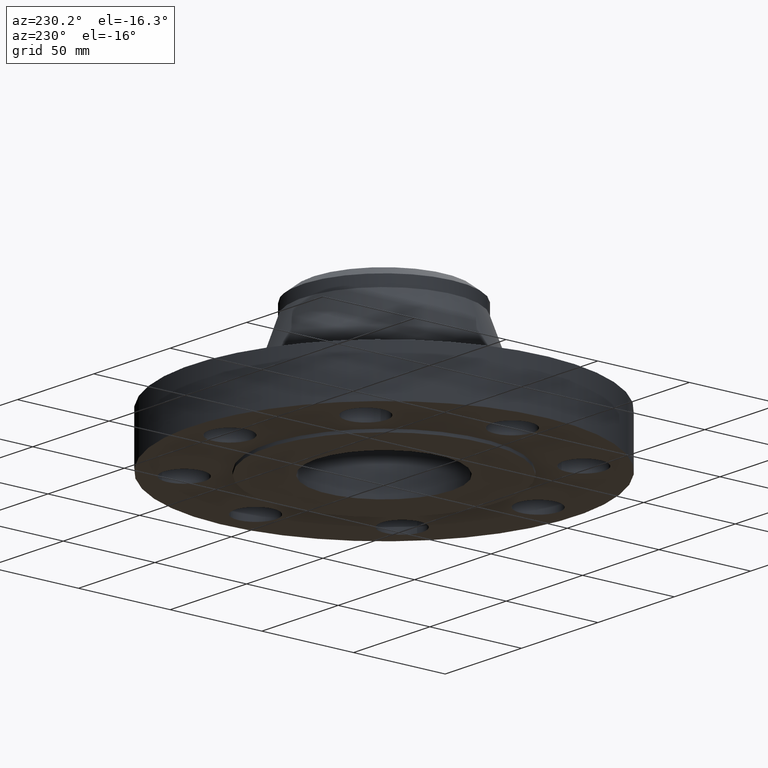
[diagram: clean part render]
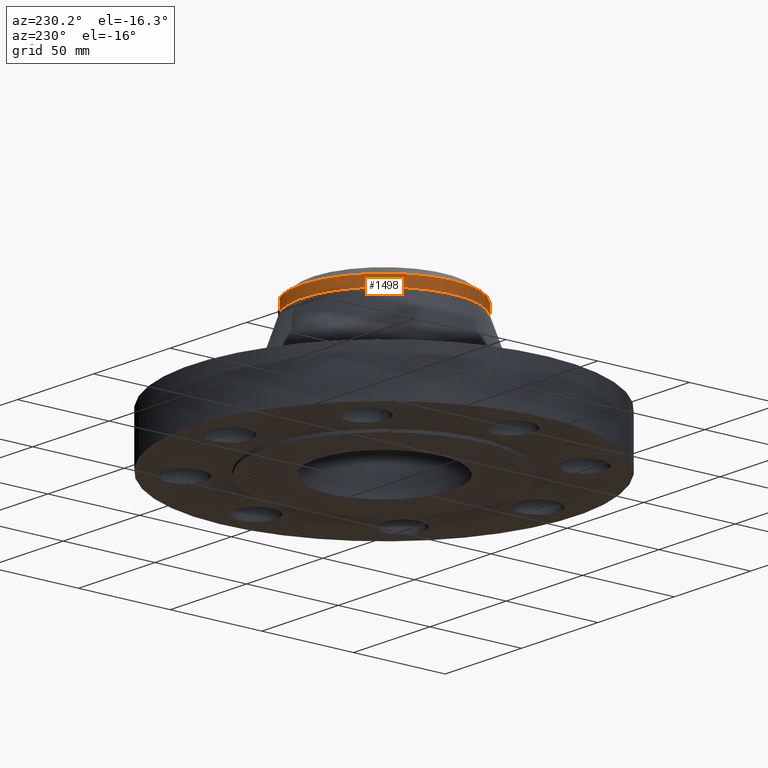
[diagram: same view with one face highlighted and labeled with its STEP entity id]
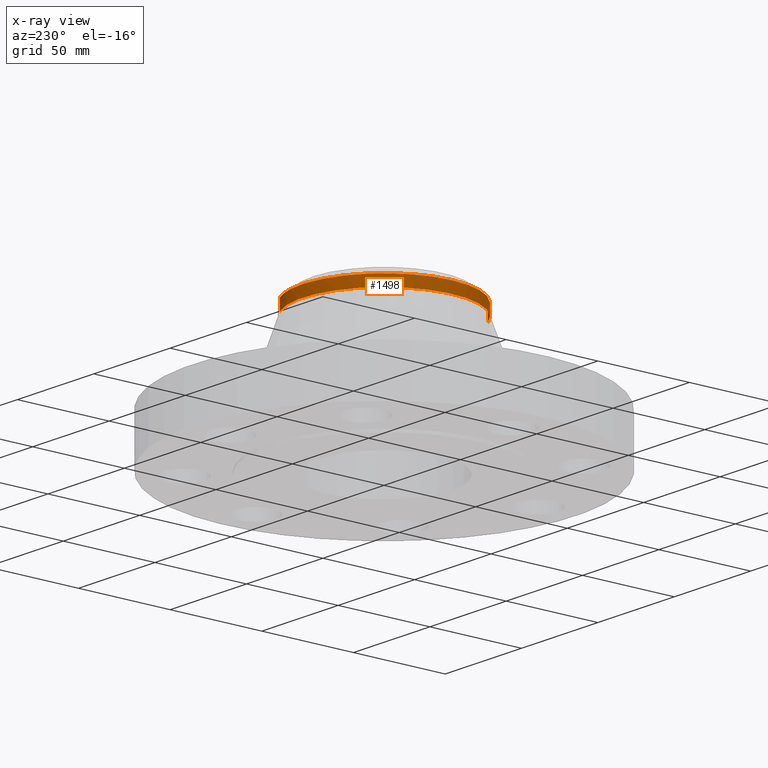
[diagram: x-ray of the same camera — body ghosted, the highlighted face saturated]
A machine part, auxiliary view. The second image highlights one B-rep face of the part: STEP entity #1498.
The next image is the same camera in x-ray: the body ghosted, the highlighted face saturated — about 0% of this face is hidden behind the body in this view.
In plain terms, the highlighted cylindrical surface (partial cylindrical patch) has radius 44.45 mm, axis along (-0, 0, -1).
Its self-contained STEP definition (entity closure, byte-faithful):
#1156=AXIS2_PLACEMENT_3D('Circle Axis2P3D',#1154,#1155,$) ;
#1460=AXIS2_PLACEMENT_3D('Cylinder Axis2P3D',#1457,#1458,#1459) ;
#1478=AXIS2_PLACEMENT_3D('Circle Axis2P3D',#1476,#1477,$) ;
#1151=CARTESIAN_POINT('Vertex',(-0.838994692563,-1.53576948332,2.65400087905)) ;
#1154=CARTESIAN_POINT('Axis2P3D Location',(0.,0.,2.65400087905)) ;
#1158=CARTESIAN_POINT('Vertex',(0.838994692562,1.53576948332,2.65400087905)) ;
#1457=CARTESIAN_POINT('Axis2P3D Location',(0.,0.,1.49875000001)) ;
#1462=CARTESIAN_POINT('Line Origine',(0.838994692563,1.53576948332,2.77211111528)) ;
#1466=CARTESIAN_POINT('Vertex',(0.838994692563,1.53576948332,2.89022135151)) ;
#1469=CARTESIAN_POINT('Line Origine',(-0.838994692563,-1.53576948332,2.77211111528)) ;
#1473=CARTESIAN_POINT('Vertex',(-0.838994692563,-1.53576948332,2.89022135151)) ;
#1476=CARTESIAN_POINT('Axis2P3D Location',(0.,0.,2.89022135151)) ;
#1480=CARTESIAN_POINT('Vertex',(-0.838994692564,1.53576948332,2.89022135151)) ;
#1484=CARTESIAN_POINT('Control Point',(-0.838994692564,1.53576948332,2.89022135151)) ;
#1485=CARTESIAN_POINT('Control Point',(-0.5318407959,1.70356842183,2.89022135151)) ;
#1486=CARTESIAN_POINT('Control Point',(-0.182740466362,1.79463337155,2.8902213515)) ;
#1487=CARTESIAN_POINT('Control Point',(0.182740466361,1.79463337155,2.8902213515)) ;
#1488=CARTESIAN_POINT('Control Point',(0.531840795899,1.70356842183,2.89022135149)) ;
#1489=CARTESIAN_POINT('Control Point',(0.838994692563,1.53576948332,2.89022135149)) ;
#1155=DIRECTION('Axis2P3D Direction',(-0.,0.,-0.0393700787402)) ;
#1458=DIRECTION('Axis2P3D Direction',(-0.,0.,-0.0393700787402)) ;
#1459=DIRECTION('Axis2P3D XDirection',(-0.0188750212049,-0.0345504945626,0.)) ;
#1463=DIRECTION('Vector Direction',(0.,0.,-0.0393700787402)) ;
#1470=DIRECTION('Vector Direction',(0.,0.,-0.0393700787402)) ;
#1477=DIRECTION('Axis2P3D Direction',(-0.,0.,-0.0393700787402)) ;
#1464=VECTOR('Line Direction',#1463,0.0393700787402) ;
#1471=VECTOR('Line Direction',#1470,0.0393700787402) ;
#1492=ORIENTED_EDGE('',*,*,#1468,.F.) ;
#1493=ORIENTED_EDGE('',*,*,#1160,.F.) ;
#1494=ORIENTED_EDGE('',*,*,#1475,.T.) ;
#1495=ORIENTED_EDGE('',*,*,#1482,.F.) ;
#1496=ORIENTED_EDGE('',*,*,#1490,.T.) ;
#1498=ADVANCED_FACE('PartBody',(#1497),#1461,.T.) ;
#1483=B_SPLINE_CURVE_WITH_KNOTS('',5,(#1484,#1485,#1486,#1487,#1488,#1489),.UNSPECIFIED.,.F.,.U.,(6,6),(-22.2250000002,22.2250000002),.UNSPECIFIED.) ;
#1157=CIRCLE('generated circle',#1156,1.75000000001) ;
#1479=CIRCLE('generated circle',#1478,1.75000000001) ;
#1461=CYLINDRICAL_SURFACE('generated cylinder',#1460,1.75000000001) ;
#1160=EDGE_CURVE('',#1152,#1159,#1157,.T.) ;
#1468=EDGE_CURVE('',#1159,#1467,#1465,.F.) ;
#1475=EDGE_CURVE('',#1152,#1474,#1472,.F.) ;
#1482=EDGE_CURVE('',#1481,#1474,#1479,.F.) ;
#1490=EDGE_CURVE('',#1481,#1467,#1483,.T.) ;
#1491=EDGE_LOOP('',(#1492,#1493,#1494,#1495,#1496)) ;
#1497=FACE_OUTER_BOUND('',#1491,.T.) ;
#1465=LINE('Line',#1462,#1464) ;
#1472=LINE('Line',#1469,#1471) ;
#1152=VERTEX_POINT('',#1151) ;
#1159=VERTEX_POINT('',#1158) ;
#1467=VERTEX_POINT('',#1466) ;
#1474=VERTEX_POINT('',#1473) ;
#1481=VERTEX_POINT('',#1480) ;